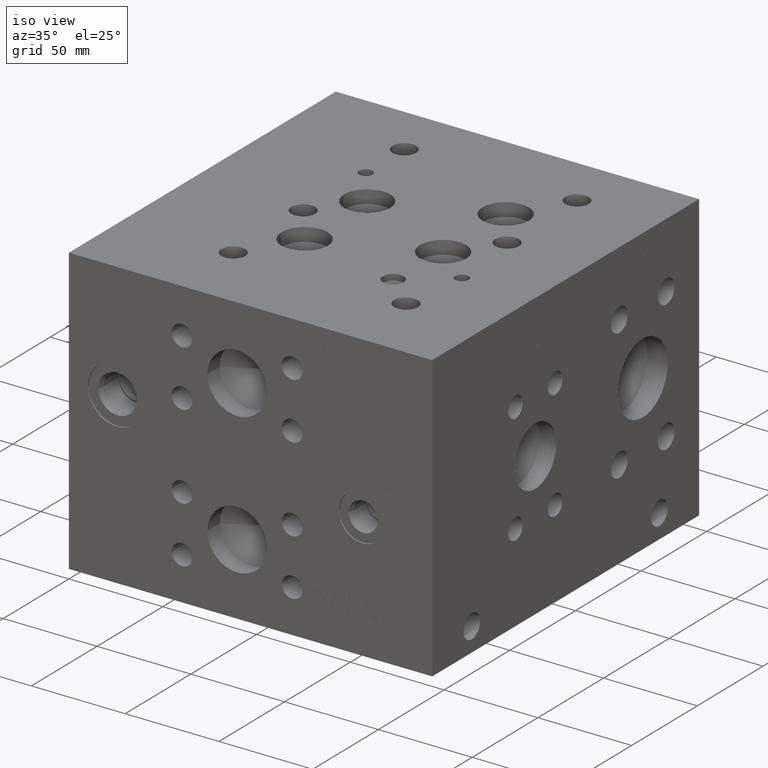
[diagram: clean part render]
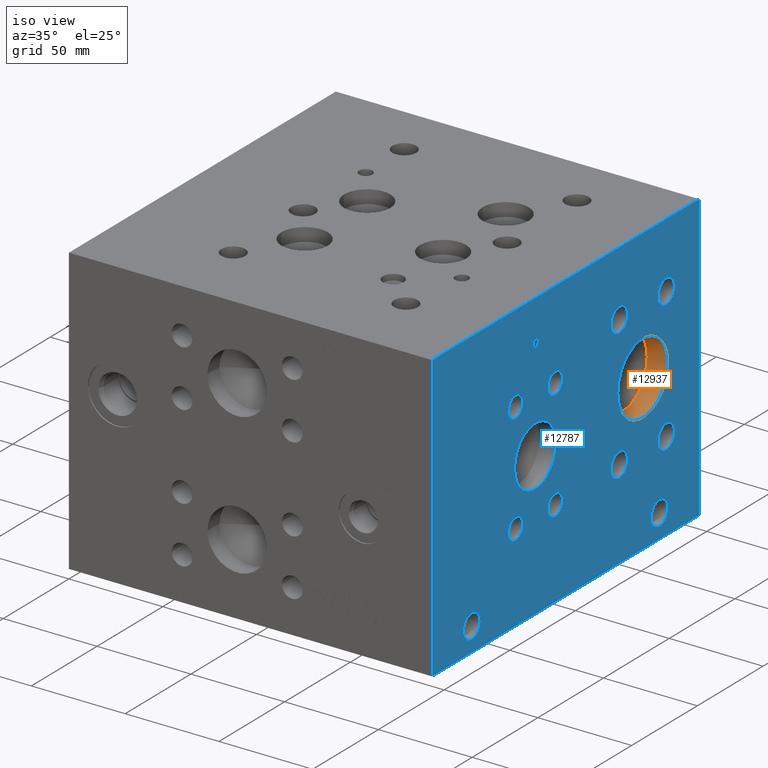
[diagram: same view with the hole feature highlighted: cylindrical wall and planar end face, labeled with their STEP entity ids]
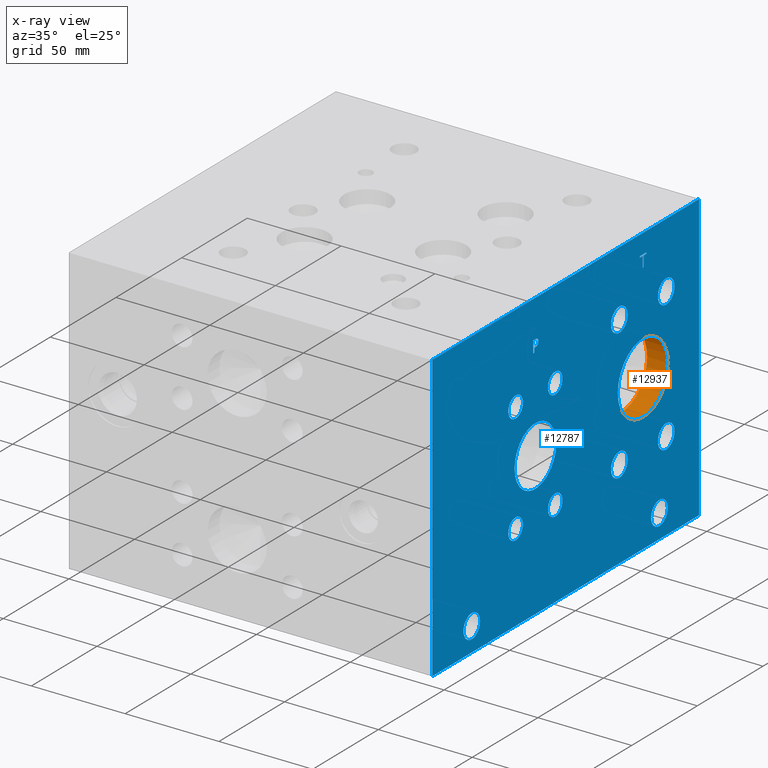
[diagram: x-ray of the same camera — body ghosted, the hole faces saturated]
A machine part, iso view. The highlighted faces form one hole feature of diameter 38.1 mm: the cylindrical wall (entity #12937, orange) and its adjacent planar end face (entity #12787, blue) — they share a circular edge in the B-rep.
The next image is the same camera in x-ray (body ghosted, the hole faces saturated) — the bore reads through the body.
Wall:
#127=CYLINDRICAL_SURFACE('',#13710,19.05);
#193=CIRCLE('',#13365,19.05);
#194=CIRCLE('',#13366,19.05);
#395=CIRCLE('',#13708,19.05);
#396=CIRCLE('',#13709,19.05);
#1663=FACE_OUTER_BOUND('',#2441,.T.);
#2441=EDGE_LOOP('',(#11077,#11078,#11079,#11080,#11081,#11082));
#3651=LINE('',#21981,#4811);
#4811=VECTOR('',#16358,19.05);
#5696=VERTEX_POINT('',#21041);
#5697=VERTEX_POINT('',#21042);
#5988=VERTEX_POINT('',#21974);
#5989=VERTEX_POINT('',#21975);
#7350=EDGE_CURVE('',#5696,#5697,#193,.T.);
#7351=EDGE_CURVE('',#5697,#5696,#194,.T.);
#7738=EDGE_CURVE('',#5988,#5989,#395,.T.);
#7740=EDGE_CURVE('',#5989,#5988,#396,.T.);
#7741=EDGE_CURVE('',#5697,#5989,#3651,.T.);
#11077=ORIENTED_EDGE('',*,*,#7350,.F.);
#11078=ORIENTED_EDGE('',*,*,#7351,.F.);
#11079=ORIENTED_EDGE('',*,*,#7741,.T.);
#11080=ORIENTED_EDGE('',*,*,#7738,.F.);
#11081=ORIENTED_EDGE('',*,*,#7740,.F.);
#11082=ORIENTED_EDGE('',*,*,#7741,.F.);
#12937=ADVANCED_FACE('',(#1663),#127,.F.);
#13365=AXIS2_PLACEMENT_3D('',#21043,#15495,#15496);
#13366=AXIS2_PLACEMENT_3D('',#21044,#15497,#15498);
#13708=AXIS2_PLACEMENT_3D('',#21976,#16351,#16352);
#13709=AXIS2_PLACEMENT_3D('',#21979,#16354,#16355);
#13710=AXIS2_PLACEMENT_3D('',#21980,#16356,#16357);
#15495=DIRECTION('center_axis',(-1.,0.,0.));
#15496=DIRECTION('ref_axis',(0.,1.,0.));
#15497=DIRECTION('center_axis',(-1.,0.,0.));
#15498=DIRECTION('ref_axis',(0.,1.,0.));
#16351=DIRECTION('center_axis',(1.,0.,0.));
#16352=DIRECTION('ref_axis',(0.,1.,0.));
#16354=DIRECTION('center_axis',(1.,0.,0.));
#16355=DIRECTION('ref_axis',(0.,1.,0.));
#16356=DIRECTION('center_axis',(1.,0.,0.));
#16357=DIRECTION('ref_axis',(0.,1.,0.));
#16358=DIRECTION('',(-1.,0.,0.));
#21041=CARTESIAN_POINT('',(193.675,179.4002,82.55));
#21042=CARTESIAN_POINT('',(193.675,141.3002,82.55));
#21043=CARTESIAN_POINT('Origin',(193.675,160.3502,82.55));
#21044=CARTESIAN_POINT('Origin',(193.675,160.3502,82.55));
#21974=CARTESIAN_POINT('',(182.67648,179.4002,82.55));
#21975=CARTESIAN_POINT('',(182.67648,141.3002,82.55));
#21976=CARTESIAN_POINT('Origin',(182.67648,160.3502,82.55));
#21979=CARTESIAN_POINT('Origin',(182.67648,160.3502,82.55));
#21980=CARTESIAN_POINT('Origin',(188.17574,160.3502,82.55));
#21981=CARTESIAN_POINT('',(188.17574,141.3002,82.55));
End face:
#193=CIRCLE('',#13365,19.05);
#194=CIRCLE('',#13366,19.05);
#195=CIRCLE('',#13367,6.35);
#196=CIRCLE('',#13368,6.35);
#197=CIRCLE('',#13369,6.35);
#198=CIRCLE('',#13370,6.35);
#199=CIRCLE('',#13371,6.35);
#200=CIRCLE('',#13372,6.35);
#201=CIRCLE('',#13373,6.35);
#202=CIRCLE('',#13374,6.35);
#203=CIRCLE('',#13375,15.875);
#204=CIRCLE('',#13376,15.875);
#205=CIRCLE('',#13377,5.5626);
#206=CIRCLE('',#13378,5.5626);
#207=CIRCLE('',#13379,5.5626);
#208=CIRCLE('',#13380,5.5626);
#209=CIRCLE('',#13381,5.5626);
#210=CIRCLE('',#13382,5.5626);
#211=CIRCLE('',#13383,5.5626);
#212=CIRCLE('',#13384,5.5626);
#213=CIRCLE('',#13385,6.35);
#214=CIRCLE('',#13386,6.35);
#215=CIRCLE('',#13387,6.35);
#216=CIRCLE('',#13388,6.35);
#573=FACE_BOUND('',#2238,.T.);
#574=FACE_BOUND('',#2239,.T.);
#575=FACE_BOUND('',#2240,.T.);
#576=FACE_BOUND('',#2241,.T.);
#577=FACE_BOUND('',#2242,.T.);
#578=FACE_BOUND('',#2243,.T.);
#579=FACE_BOUND('',#2244,.T.);
#580=FACE_BOUND('',#2245,.T.);
#581=FACE_BOUND('',#2246,.T.);
#582=FACE_BOUND('',#2247,.T.);
#583=FACE_BOUND('',#2248,.T.);
#584=FACE_BOUND('',#2249,.T.);
#585=FACE_BOUND('',#2250,.T.);
#586=FACE_BOUND('',#2251,.T.);
#915=B_SPLINE_CURVE_WITH_KNOTS('',2,(#20938,#20939,#20940,#20941),
 .UNSPECIFIED.,.F.,.F.,(3,1,3),(0.,1.,2.),.UNSPECIFIED.);
#917=B_SPLINE_CURVE_WITH_KNOTS('',2,(#20959,#20960,#20961,#20962),
 .UNSPECIFIED.,.F.,.F.,(3,1,3),(0.,1.,2.),.UNSPECIFIED.);
#919=B_SPLINE_CURVE_WITH_KNOTS('',2,(#21008,#21009,#21010,#21011),
 .UNSPECIFIED.,.F.,.F.,(3,1,3),(0.,1.,2.),.UNSPECIFIED.);
#921=B_SPLINE_CURVE_WITH_KNOTS('',2,(#21026,#21027,#21028,#21029),
 .UNSPECIFIED.,.F.,.F.,(3,1,3),(0.,1.,2.),.UNSPECIFIED.);
#1513=FACE_OUTER_BOUND('',#2237,.T.);
#2237=EDGE_LOOP('',(#10297,#10298,#10299,#10300));
#2238=EDGE_LOOP('',(#10301,#10302));
#2239=EDGE_LOOP('',(#10303,#10304));
#2240=EDGE_LOOP('',(#10305,#10306));
#2241=EDGE_LOOP('',(#10307,#10308));
#2242=EDGE_LOOP('',(#10309,#10310));
#2243=EDGE_LOOP('',(#10311,#10312));
#2244=EDGE_LOOP('',(#10313,#10314));
#2245=EDGE_LOOP('',(#10315,#10316));
#2246=EDGE_LOOP('',(#10317,#10318));
#2247=EDGE_LOOP('',(#10319,#10320));
#2248=EDGE_LOOP('',(#10321,#10322));
#2249=EDGE_LOOP('',(#10323,#10324));
#2250=EDGE_LOOP('',(#10325,#10326,#10327,#10328,#10329,#10330,#10331,#10332));
#2251=EDGE_LOOP('',(#10333,#10334,#10335,#10336,#10337,#10338,#10339,#10340,
#10341));
#2893=LINE('',#19046,#4053);
#3461=LINE('',#20971,#4621);
#3464=LINE('',#20977,#4624);
#3467=LINE('',#20983,#4627);
#3470=LINE('',#20989,#4630);
#3473=LINE('',#20995,#4633);
#3477=LINE('',#21037,#4637);
#3478=LINE('',#21039,#4638);
#3479=LINE('',#21040,#4639);
#3480=LINE('',#21091,#4640);
#3481=LINE('',#21093,#4641);
#3482=LINE('',#21095,#4642);
#3483=LINE('',#21097,#4643);
#3484=LINE('',#21099,#4644);
#3485=LINE('',#21101,#4645);
#3486=LINE('',#21103,#4646);
#3487=LINE('',#21104,#4647);
#4053=VECTOR('',#14446,10.);
#4621=VECTOR('',#15464,10.);
#4624=VECTOR('',#15469,10.);
#4627=VECTOR('',#15474,10.);
#4630=VECTOR('',#15479,10.);
#4633=VECTOR('',#15484,10.);
#4637=VECTOR('',#15492,10.);
#4638=VECTOR('',#15493,10.);
#4639=VECTOR('',#15494,10.);
#4640=VECTOR('',#15543,10.);
#4641=VECTOR('',#15544,10.);
#4642=VECTOR('',#15545,10.);
#4643=VECTOR('',#15546,10.);
#4644=VECTOR('',#15547,10.);
#4645=VECTOR('',#15548,10.);
#4646=VECTOR('',#15549,10.);
#4647=VECTOR('',#15550,10.);
#5221=VERTEX_POINT('',#19043);
#5222=VERTEX_POINT('',#19045);
#5676=VERTEX_POINT('',#20936);
#5677=VERTEX_POINT('',#20937);
#5680=VERTEX_POINT('',#20958);
#5682=VERTEX_POINT('',#20970);
#5684=VERTEX_POINT('',#20976);
#5686=VERTEX_POINT('',#20982);
#5688=VERTEX_POINT('',#20988);
#5690=VERTEX_POINT('',#20994);
#5692=VERTEX_POINT('',#21007);
#5694=VERTEX_POINT('',#21036);
#5695=VERTEX_POINT('',#21038);
#5696=VERTEX_POINT('',#21041);
#5697=VERTEX_POINT('',#21042);
#5698=VERTEX_POINT('',#21045);
#5699=VERTEX_POINT('',#21046);
#5700=VERTEX_POINT('',#21049);
#5701=VERTEX_POINT('',#21050);
#5702=VERTEX_POINT('',#21053);
#5703=VERTEX_POINT('',#21054);
#5704=VERTEX_POINT('',#21057);
#5705=VERTEX_POINT('',#21058);
#5706=VERTEX_POINT('',#21061);
#5707=VERTEX_POINT('',#21062);
#5708=VERTEX_POINT('',#21065);
#5709=VERTEX_POINT('',#21066);
#5710=VERTEX_POINT('',#21069);
#5711=VERTEX_POINT('',#21070);
#5712=VERTEX_POINT('',#21073);
#5713=VERTEX_POINT('',#21074);
#5714=VERTEX_POINT('',#21077);
#5715=VERTEX_POINT('',#21078);
#5716=VERTEX_POINT('',#21081);
#5717=VERTEX_POINT('',#21082);
#5718=VERTEX_POINT('',#21085);
#5719=VERTEX_POINT('',#21086);
#5720=VERTEX_POINT('',#21089);
#5721=VERTEX_POINT('',#21090);
#5722=VERTEX_POINT('',#21092);
#5723=VERTEX_POINT('',#21094);
#5724=VERTEX_POINT('',#21096);
#5725=VERTEX_POINT('',#21098);
#5726=VERTEX_POINT('',#21100);
#5727=VERTEX_POINT('',#21102);
#6651=EDGE_CURVE('',#5221,#5222,#2893,.T.);
#7320=EDGE_CURVE('',#5676,#5677,#915,.T.);
#7324=EDGE_CURVE('',#5680,#5676,#917,.T.);
#7327=EDGE_CURVE('',#5682,#5680,#3461,.T.);
#7330=EDGE_CURVE('',#5684,#5682,#3464,.T.);
#7333=EDGE_CURVE('',#5686,#5684,#3467,.T.);
#7336=EDGE_CURVE('',#5688,#5686,#3470,.T.);
#7339=EDGE_CURVE('',#5690,#5688,#3473,.T.);
#7342=EDGE_CURVE('',#5692,#5690,#919,.T.);
#7345=EDGE_CURVE('',#5677,#5692,#921,.T.);
#7347=EDGE_CURVE('',#5221,#5694,#3477,.T.);
#7348=EDGE_CURVE('',#5694,#5695,#3478,.T.);
#7349=EDGE_CURVE('',#5222,#5695,#3479,.T.);
#7350=EDGE_CURVE('',#5696,#5697,#193,.T.);
#7351=EDGE_CURVE('',#5697,#5696,#194,.T.);
#7352=EDGE_CURVE('',#5698,#5699,#195,.T.);
#7353=EDGE_CURVE('',#5699,#5698,#196,.T.);
#7354=EDGE_CURVE('',#5700,#5701,#197,.T.);
#7355=EDGE_CURVE('',#5701,#5700,#198,.T.);
#7356=EDGE_CURVE('',#5702,#5703,#199,.T.);
#7357=EDGE_CURVE('',#5703,#5702,#200,.T.);
#7358=EDGE_CURVE('',#5704,#5705,#201,.T.);
#7359=EDGE_CURVE('',#5705,#5704,#202,.T.);
#7360=EDGE_CURVE('',#5706,#5707,#203,.T.);
#7361=EDGE_CURVE('',#5707,#5706,#204,.T.);
#7362=EDGE_CURVE('',#5708,#5709,#205,.T.);
#7363=EDGE_CURVE('',#5709,#5708,#206,.T.);
#7364=EDGE_CURVE('',#5710,#5711,#207,.T.);
#7365=EDGE_CURVE('',#5711,#5710,#208,.T.);
#7366=EDGE_CURVE('',#5712,#5713,#209,.T.);
#7367=EDGE_CURVE('',#5713,#5712,#210,.T.);
#7368=EDGE_CURVE('',#5714,#5715,#211,.T.);
#7369=EDGE_CURVE('',#5715,#5714,#212,.T.);
#7370=EDGE_CURVE('',#5716,#5717,#213,.T.);
#7371=EDGE_CURVE('',#5717,#5716,#214,.T.);
#7372=EDGE_CURVE('',#5718,#5719,#215,.T.);
#7373=EDGE_CURVE('',#5719,#5718,#216,.T.);
#7374=EDGE_CURVE('',#5720,#5721,#3480,.T.);
#7375=EDGE_CURVE('',#5721,#5722,#3481,.T.);
#7376=EDGE_CURVE('',#5722,#5723,#3482,.T.);
#7377=EDGE_CURVE('',#5723,#5724,#3483,.T.);
#7378=EDGE_CURVE('',#5724,#5725,#3484,.T.);
#7379=EDGE_CURVE('',#5725,#5726,#3485,.T.);
#7380=EDGE_CURVE('',#5726,#5727,#3486,.T.);
#7381=EDGE_CURVE('',#5727,#5720,#3487,.T.);
#10297=ORIENTED_EDGE('',*,*,#7347,.T.);
#10298=ORIENTED_EDGE('',*,*,#7348,.T.);
#10299=ORIENTED_EDGE('',*,*,#7349,.F.);
#10300=ORIENTED_EDGE('',*,*,#6651,.F.);
#10301=ORIENTED_EDGE('',*,*,#7350,.T.);
#10302=ORIENTED_EDGE('',*,*,#7351,.T.);
#10303=ORIENTED_EDGE('',*,*,#7352,.T.);
#10304=ORIENTED_EDGE('',*,*,#7353,.T.);
#10305=ORIENTED_EDGE('',*,*,#7354,.T.);
#10306=ORIENTED_EDGE('',*,*,#7355,.T.);
#10307=ORIENTED_EDGE('',*,*,#7356,.T.);
#10308=ORIENTED_EDGE('',*,*,#7357,.T.);
#10309=ORIENTED_EDGE('',*,*,#7358,.T.);
#10310=ORIENTED_EDGE('',*,*,#7359,.T.);
#10311=ORIENTED_EDGE('',*,*,#7360,.T.);
#10312=ORIENTED_EDGE('',*,*,#7361,.T.);
#10313=ORIENTED_EDGE('',*,*,#7362,.T.);
#10314=ORIENTED_EDGE('',*,*,#7363,.T.);
#10315=ORIENTED_EDGE('',*,*,#7364,.T.);
#10316=ORIENTED_EDGE('',*,*,#7365,.T.);
#10317=ORIENTED_EDGE('',*,*,#7366,.T.);
#10318=ORIENTED_EDGE('',*,*,#7367,.T.);
#10319=ORIENTED_EDGE('',*,*,#7368,.T.);
#10320=ORIENTED_EDGE('',*,*,#7369,.T.);
#10321=ORIENTED_EDGE('',*,*,#7370,.T.);
#10322=ORIENTED_EDGE('',*,*,#7371,.T.);
#10323=ORIENTED_EDGE('',*,*,#7372,.T.);
#10324=ORIENTED_EDGE('',*,*,#7373,.T.);
#10325=ORIENTED_EDGE('',*,*,#7374,.T.);
#10326=ORIENTED_EDGE('',*,*,#7375,.T.);
#10327=ORIENTED_EDGE('',*,*,#7376,.T.);
#10328=ORIENTED_EDGE('',*,*,#7377,.T.);
#10329=ORIENTED_EDGE('',*,*,#7378,.T.);
#10330=ORIENTED_EDGE('',*,*,#7379,.T.);
#10331=ORIENTED_EDGE('',*,*,#7380,.T.);
#10332=ORIENTED_EDGE('',*,*,#7381,.T.);
#10333=ORIENTED_EDGE('',*,*,#7320,.T.);
#10334=ORIENTED_EDGE('',*,*,#7345,.T.);
#10335=ORIENTED_EDGE('',*,*,#7342,.T.);
#10336=ORIENTED_EDGE('',*,*,#7339,.T.);
#10337=ORIENTED_EDGE('',*,*,#7336,.T.);
#10338=ORIENTED_EDGE('',*,*,#7333,.T.);
#10339=ORIENTED_EDGE('',*,*,#7330,.T.);
#10340=ORIENTED_EDGE('',*,*,#7327,.T.);
#10341=ORIENTED_EDGE('',*,*,#7324,.T.);
#11822=PLANE('',#13364);
#12787=ADVANCED_FACE('',(#1513,#573,#574,#575,#576,#577,#578,#579,#580,
#581,#582,#583,#584,#585,#586),#11822,.T.);
#13364=AXIS2_PLACEMENT_3D('',#21035,#15490,#15491);
#13365=AXIS2_PLACEMENT_3D('',#21043,#15495,#15496);
#13366=AXIS2_PLACEMENT_3D('',#21044,#15497,#15498);
#13367=AXIS2_PLACEMENT_3D('',#21047,#15499,#15500);
#13368=AXIS2_PLACEMENT_3D('',#21048,#15501,#15502);
#13369=AXIS2_PLACEMENT_3D('',#21051,#15503,#15504);
#13370=AXIS2_PLACEMENT_3D('',#21052,#15505,#15506);
#13371=AXIS2_PLACEMENT_3D('',#21055,#15507,#15508);
#13372=AXIS2_PLACEMENT_3D('',#21056,#15509,#15510);
#13373=AXIS2_PLACEMENT_3D('',#21059,#15511,#15512);
#13374=AXIS2_PLACEMENT_3D('',#21060,#15513,#15514);
#13375=AXIS2_PLACEMENT_3D('',#21063,#15515,#15516);
#13376=AXIS2_PLACEMENT_3D('',#21064,#15517,#15518);
#13377=AXIS2_PLACEMENT_3D('',#21067,#15519,#15520);
#13378=AXIS2_PLACEMENT_3D('',#21068,#15521,#15522);
#13379=AXIS2_PLACEMENT_3D('',#21071,#15523,#15524);
#13380=AXIS2_PLACEMENT_3D('',#21072,#15525,#15526);
#13381=AXIS2_PLACEMENT_3D('',#21075,#15527,#15528);
#13382=AXIS2_PLACEMENT_3D('',#21076,#15529,#15530);
#13383=AXIS2_PLACEMENT_3D('',#21079,#15531,#15532);
#13384=AXIS2_PLACEMENT_3D('',#21080,#15533,#15534);
#13385=AXIS2_PLACEMENT_3D('',#21083,#15535,#15536);
#13386=AXIS2_PLACEMENT_3D('',#21084,#15537,#15538);
#13387=AXIS2_PLACEMENT_3D('',#21087,#15539,#15540);
#13388=AXIS2_PLACEMENT_3D('',#21088,#15541,#15542);
#14446=DIRECTION('',(0.,0.,1.));
#15464=DIRECTION('',(0.,1.,0.));
#15469=DIRECTION('',(0.,0.,1.));
#15474=DIRECTION('',(0.,-1.,0.));
#15479=DIRECTION('',(0.,0.,-1.));
#15484=DIRECTION('',(0.,-1.,0.));
#15490=DIRECTION('center_axis',(1.,0.,0.));
#15491=DIRECTION('ref_axis',(0.,1.,0.));
#15492=DIRECTION('',(0.,1.,0.));
#15493=DIRECTION('',(0.,0.,1.));
#15494=DIRECTION('',(0.,1.,0.));
#15495=DIRECTION('center_axis',(-1.,0.,0.));
#15496=DIRECTION('ref_axis',(0.,1.,0.));
#15497=DIRECTION('center_axis',(-1.,0.,0.));
#15498=DIRECTION('ref_axis',(0.,1.,0.));
#15499=DIRECTION('center_axis',(-1.,0.,0.));
#15500=DIRECTION('ref_axis',(0.,1.,0.));
#15501=DIRECTION('center_axis',(-1.,0.,0.));
#15502=DIRECTION('ref_axis',(0.,1.,0.));
#15503=DIRECTION('center_axis',(-1.,0.,0.));
#15504=DIRECTION('ref_axis',(0.,1.,0.));
#15505=DIRECTION('center_axis',(-1.,0.,0.));
#15506=DIRECTION('ref_axis',(0.,1.,0.));
#15507=DIRECTION('center_axis',(-1.,0.,0.));
#15508=DIRECTION('ref_axis',(0.,1.,0.));
#15509=DIRECTION('center_axis',(-1.,0.,0.));
#15510=DIRECTION('ref_axis',(0.,1.,0.));
#15511=DIRECTION('center_axis',(-1.,0.,0.));
#15512=DIRECTION('ref_axis',(0.,1.,0.));
#15513=DIRECTION('center_axis',(-1.,0.,0.));
#15514=DIRECTION('ref_axis',(0.,1.,0.));
#15515=DIRECTION('center_axis',(-1.,0.,0.));
#15516=DIRECTION('ref_axis',(0.,1.,0.));
#15517=DIRECTION('center_axis',(-1.,0.,0.));
#15518=DIRECTION('ref_axis',(0.,1.,0.));
#15519=DIRECTION('center_axis',(-1.,0.,0.));
#15520=DIRECTION('ref_axis',(0.,1.,0.));
#15521=DIRECTION('center_axis',(-1.,0.,0.));
#15522=DIRECTION('ref_axis',(0.,1.,0.));
#15523=DIRECTION('center_axis',(-1.,0.,0.));
#15524=DIRECTION('ref_axis',(0.,1.,0.));
#15525=DIRECTION('center_axis',(-1.,0.,0.));
#15526=DIRECTION('ref_axis',(0.,1.,0.));
#15527=DIRECTION('center_axis',(-1.,0.,0.));
#15528=DIRECTION('ref_axis',(0.,1.,0.));
#15529=DIRECTION('center_axis',(-1.,0.,0.));
#15530=DIRECTION('ref_axis',(0.,1.,0.));
#15531=DIRECTION('center_axis',(-1.,0.,0.));
#15532=DIRECTION('ref_axis',(0.,1.,0.));
#15533=DIRECTION('center_axis',(-1.,0.,0.));
#15534=DIRECTION('ref_axis',(0.,1.,0.));
#15535=DIRECTION('center_axis',(-1.,0.,0.));
#15536=DIRECTION('ref_axis',(0.,1.,0.));
#15537=DIRECTION('center_axis',(-1.,0.,0.));
#15538=DIRECTION('ref_axis',(0.,1.,0.));
#15539=DIRECTION('center_axis',(-1.,0.,0.));
#15540=DIRECTION('ref_axis',(0.,1.,0.));
#15541=DIRECTION('center_axis',(-1.,0.,0.));
#15542=DIRECTION('ref_axis',(0.,1.,0.));
#15543=DIRECTION('',(0.,-1.,0.));
#15544=DIRECTION('',(0.,0.,1.));
#15545=DIRECTION('',(0.,-1.,0.));
#15546=DIRECTION('',(0.,0.,1.));
#15547=DIRECTION('',(0.,1.,0.));
#15548=DIRECTION('',(0.,0.,-1.));
#15549=DIRECTION('',(0.,-1.,0.));
#15550=DIRECTION('',(0.,0.,-1.));
#19043=CARTESIAN_POINT('',(193.675,0.,0.));
#19045=CARTESIAN_POINT('',(193.675,0.,152.4));
#19046=CARTESIAN_POINT('',(193.675,0.,0.));
#20936=CARTESIAN_POINT('',(193.675,80.1005672023594,132.166368143971));
#20937=CARTESIAN_POINT('',(193.675,80.857009654532,130.648337372604));
#20938=CARTESIAN_POINT('Ctrl Pts',(193.675,80.1005672023594,132.166368143971));
#20939=CARTESIAN_POINT('Ctrl Pts',(193.675,80.4556320268486,131.924512393956));
#20940=CARTESIAN_POINT('Ctrl Pts',(193.675,80.857009654532,131.178361675827));
#20941=CARTESIAN_POINT('Ctrl Pts',(193.675,80.857009654532,130.648337372604));
#20958=CARTESIAN_POINT('',(193.675,78.4384521543883,132.562599904633));
#20959=CARTESIAN_POINT('Ctrl Pts',(193.675,78.4384521543883,132.562599904633));
#20960=CARTESIAN_POINT('Ctrl Pts',(193.675,79.0044975267624,132.562599904633));
#20961=CARTESIAN_POINT('Ctrl Pts',(193.675,79.796961048086,132.377348691856));
#20962=CARTESIAN_POINT('Ctrl Pts',(193.675,80.1005672023594,132.166368143971));
#20970=CARTESIAN_POINT('',(193.675,76.8432333776978,132.562599904633));
#20971=CARTESIAN_POINT('',(193.675,38.4216166888489,132.562599904633));
#20976=CARTESIAN_POINT('',(193.675,76.8432333776978,126.2126));
#20977=CARTESIAN_POINT('',(193.675,76.8432333776978,63.1063));
#20982=CARTESIAN_POINT('',(193.675,77.6871555692373,126.2126));
#20983=CARTESIAN_POINT('',(193.675,38.8435777846186,126.2126));
#20988=CARTESIAN_POINT('',(193.675,77.6871555692373,128.579698829928));
#20989=CARTESIAN_POINT('',(193.675,77.6871555692373,64.2898494149639));
#20994=CARTESIAN_POINT('',(193.675,78.4024310852372,128.579698829928));
#20995=CARTESIAN_POINT('',(193.675,39.2012155426186,128.579698829928));
#21007=CARTESIAN_POINT('',(193.675,80.3012560162011,129.23836980869));
#21008=CARTESIAN_POINT('Ctrl Pts',(193.675,80.3012560162011,129.23836980869));
#21009=CARTESIAN_POINT('Ctrl Pts',(193.675,79.9719205268198,128.914180186331));
#21010=CARTESIAN_POINT('Ctrl Pts',(193.675,79.0816855320861,128.579698829928));
#21011=CARTESIAN_POINT('Ctrl Pts',(193.675,78.4024310852372,128.579698829928));
#21026=CARTESIAN_POINT('Ctrl Pts',(193.675,80.857009654532,130.648337372604));
#21027=CARTESIAN_POINT('Ctrl Pts',(193.675,80.857009654532,130.236668010877));
#21028=CARTESIAN_POINT('Ctrl Pts',(193.675,80.5636952343018,129.495663159769));
#21029=CARTESIAN_POINT('Ctrl Pts',(193.675,80.3012560162011,129.23836980869));
#21035=CARTESIAN_POINT('Origin',(193.675,0.,0.));
#21036=CARTESIAN_POINT('',(193.675,203.2,0.));
#21037=CARTESIAN_POINT('',(193.675,0.,0.));
#21038=CARTESIAN_POINT('',(193.675,203.2,152.4));
#21039=CARTESIAN_POINT('',(193.675,203.2,0.));
#21040=CARTESIAN_POINT('',(193.675,0.,152.4));
#21041=CARTESIAN_POINT('',(193.675,179.4002,82.55));
#21042=CARTESIAN_POINT('',(193.675,141.3002,82.55));
#21043=CARTESIAN_POINT('Origin',(193.675,160.3502,82.55));
#21044=CARTESIAN_POINT('Origin',(193.675,160.3502,82.55));
#21045=CARTESIAN_POINT('',(193.675,148.844,117.475));
#21046=CARTESIAN_POINT('',(193.675,136.144,117.475));
#21047=CARTESIAN_POINT('Origin',(193.675,142.494,117.475));
#21048=CARTESIAN_POINT('Origin',(193.675,142.494,117.475));
#21049=CARTESIAN_POINT('',(193.675,184.5564,47.625));
#21050=CARTESIAN_POINT('',(193.675,171.8564,47.625));
#21051=CARTESIAN_POINT('Origin',(193.675,178.2064,47.625));
#21052=CARTESIAN_POINT('Origin',(193.675,178.2064,47.625));
#21053=CARTESIAN_POINT('',(193.675,184.5564,117.475));
#21054=CARTESIAN_POINT('',(193.675,171.8564,117.475));
#21055=CARTESIAN_POINT('Origin',(193.675,178.2064,117.475));
#21056=CARTESIAN_POINT('Origin',(193.675,178.2064,117.475));
#21057=CARTESIAN_POINT('',(193.675,148.844,47.625));
#21058=CARTESIAN_POINT('',(193.675,136.144,47.625));
#21059=CARTESIAN_POINT('Origin',(193.675,142.494,47.625));
#21060=CARTESIAN_POINT('Origin',(193.675,142.494,47.625));
#21061=CARTESIAN_POINT('',(193.675,94.4626,76.2));
#21062=CARTESIAN_POINT('',(193.675,62.7126,76.2));
#21063=CARTESIAN_POINT('Origin',(193.675,78.5876,76.2));
#21064=CARTESIAN_POINT('Origin',(193.675,78.5876,76.2));
#21065=CARTESIAN_POINT('',(193.675,69.0626,46.8376));
#21066=CARTESIAN_POINT('',(193.675,57.9374,46.8376));
#21067=CARTESIAN_POINT('Origin',(193.675,63.5,46.8376));
#21068=CARTESIAN_POINT('Origin',(193.675,63.5,46.8376));
#21069=CARTESIAN_POINT('',(193.675,99.2378,105.5624));
#21070=CARTESIAN_POINT('',(193.675,88.1126,105.5624));
#21071=CARTESIAN_POINT('Origin',(193.675,93.6752,105.5624));
#21072=CARTESIAN_POINT('Origin',(193.675,93.6752,105.5624));
#21073=CARTESIAN_POINT('',(193.675,69.0626,105.5624));
#21074=CARTESIAN_POINT('',(193.675,57.9374,105.5624));
#21075=CARTESIAN_POINT('Origin',(193.675,63.5,105.5624));
#21076=CARTESIAN_POINT('Origin',(193.675,63.5,105.5624));
#21077=CARTESIAN_POINT('',(193.675,99.2378,46.8376));
#21078=CARTESIAN_POINT('',(193.675,88.1126,46.8376));
#21079=CARTESIAN_POINT('Origin',(193.675,93.6752,46.8376));
#21080=CARTESIAN_POINT('Origin',(193.675,93.6752,46.8376));
#21081=CARTESIAN_POINT('',(193.675,179.3748,12.7));
#21082=CARTESIAN_POINT('',(193.675,166.6748,12.7));
#21083=CARTESIAN_POINT('Origin',(193.675,173.0248,12.7));
#21084=CARTESIAN_POINT('Origin',(193.675,173.0248,12.7));
#21085=CARTESIAN_POINT('',(193.675,36.5252,12.7));
#21086=CARTESIAN_POINT('',(193.675,23.8252,12.7));
#21087=CARTESIAN_POINT('Origin',(193.675,30.1752,12.7));
#21088=CARTESIAN_POINT('Origin',(193.675,30.1752,12.7));
#21089=CARTESIAN_POINT('',(193.675,160.957165271453,135.7376));
#21090=CARTESIAN_POINT('',(193.675,160.113243079913,135.7376));
#21091=CARTESIAN_POINT('',(193.675,80.4785826357265,135.7376));
#21092=CARTESIAN_POINT('',(193.675,160.113243079913,141.336303319482));
#21093=CARTESIAN_POINT('',(193.675,160.113243079913,67.8688));
#21094=CARTESIAN_POINT('',(193.675,157.982854132978,141.336303319482));
#21095=CARTESIAN_POINT('',(193.675,80.0566215399567,141.336303319482));
#21096=CARTESIAN_POINT('',(193.675,157.982854132978,142.087599904633));
#21097=CARTESIAN_POINT('',(193.675,157.982854132978,70.6681516597408));
#21098=CARTESIAN_POINT('',(193.675,163.087554218388,142.087599904633));
#21099=CARTESIAN_POINT('',(193.675,78.9914270664892,142.087599904633));
#21100=CARTESIAN_POINT('',(193.675,163.087554218388,141.336303319482));
#21101=CARTESIAN_POINT('',(193.675,163.087554218388,71.0437999523163));
#21102=CARTESIAN_POINT('',(193.675,160.957165271453,141.336303319482));
#21103=CARTESIAN_POINT('',(193.675,81.543777109194,141.336303319482));
#21104=CARTESIAN_POINT('',(193.675,160.957165271453,70.6681516597408));